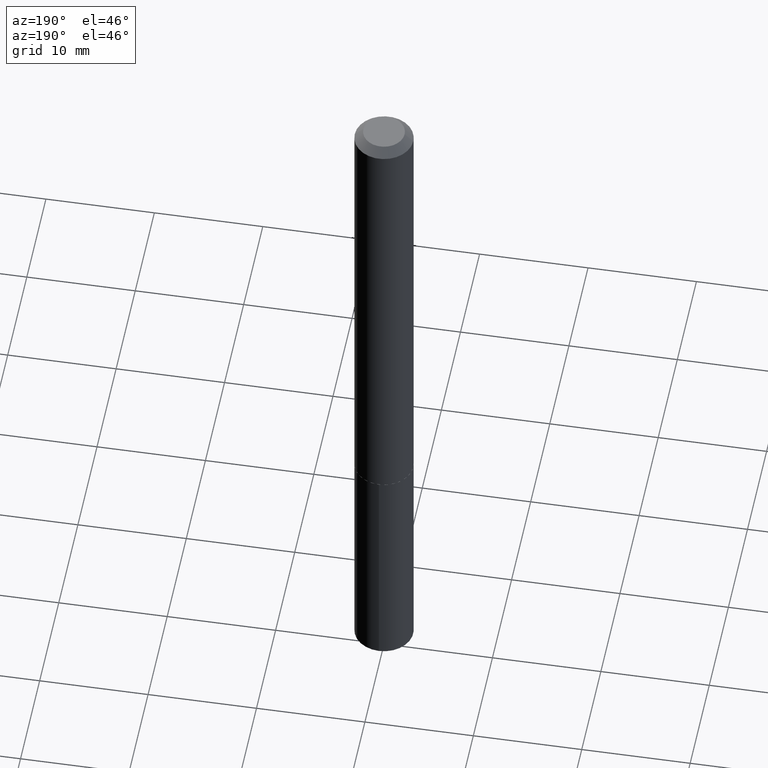
[diagram: clean part render]
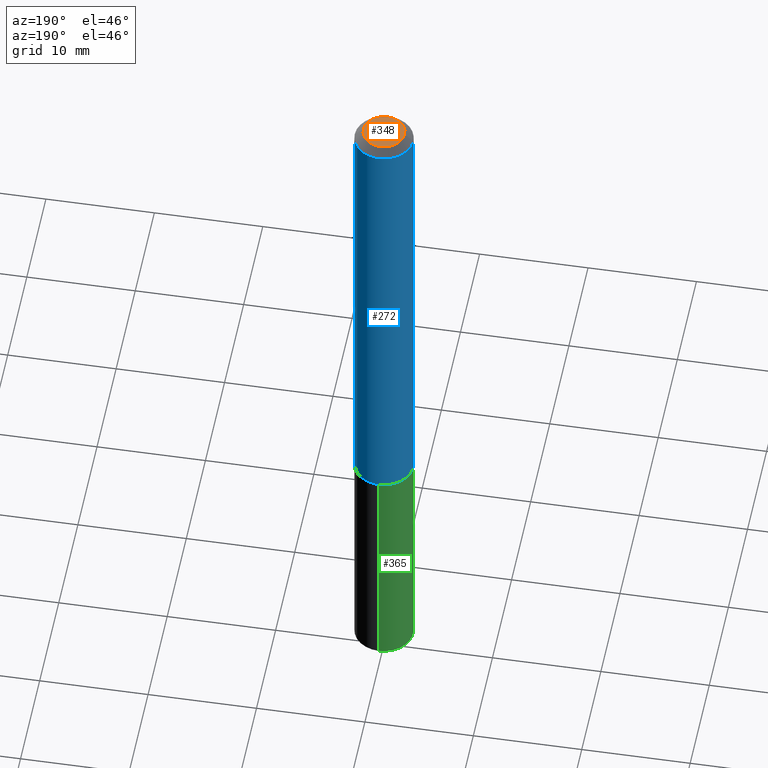
[diagram: same view with three faces highlighted in distinct colors, each labeled with its STEP entity id]
A machine part, auxiliary view with three faces highlighted in distinct colors.
Their STEP definitions:

[orange] entity #348 — the highlighted planar face has unit normal (0, -0, -1).
#7 = ORIENTED_EDGE ( 'NONE', *, *, #293, .T. ) ;
#8 = DIRECTION ( 'NONE',  ( -1.000000000000000000, 6.982962677686265922E-15, -4.876176775795935793E-29 ) ) ;
#38 = PLANE ( 'NONE',  #284 ) ;
#49 = DIRECTION ( 'NONE',  ( -2.445468806185136597E-29, 3.491481338843145583E-15, 1.000000000000000000 ) ) ;
#58 = EDGE_CURVE ( 'NONE', #124, #222, #139, .T. ) ;
#65 = DIRECTION ( 'NONE',  ( 1.000000000000000000, -6.982962677686265922E-15, 4.876182450887181548E-29 ) ) ;
#124 = VERTEX_POINT ( 'NONE', #198 ) ;
#139 = CIRCLE ( 'NONE', #268, 0.07505000000000000560 ) ;
#158 = CARTESIAN_POINT ( 'NONE',  ( -0.07505000000000001947, 5.786257448797778683E-16, 2.388061258298797245E-19 ) ) ;
#191 = CARTESIAN_POINT ( 'NONE',  ( -5.839929314523221596E-48, 8.337871319499147471E-34, 2.388061258337352918E-19 ) ) ;
#198 = CARTESIAN_POINT ( 'NONE',  ( 0.07505000000000001947, -6.766300518673582083E-16, 2.388061258379330487E-19 ) ) ;
#205 = CARTESIAN_POINT ( 'NONE',  ( -5.839929314523221596E-48, 8.337871319499147471E-34, 2.388061258337352918E-19 ) ) ;
#222 = VERTEX_POINT ( 'NONE', #158 ) ;
#261 = FACE_OUTER_BOUND ( 'NONE', #329, .T. ) ;
#268 = AXIS2_PLACEMENT_3D ( 'NONE', #191, #326, #65 ) ;
#282 = CARTESIAN_POINT ( 'NONE',  ( -2.919964657261610798E-48, 4.168935659749573735E-34, 1.194030629168676459E-19 ) ) ;
#284 = AXIS2_PLACEMENT_3D ( 'NONE', #282, #369, #8 ) ;
#293 = EDGE_CURVE ( 'NONE', #222, #124, #330, .T. ) ;
#326 = DIRECTION ( 'NONE',  ( -2.445468806185136597E-29, 3.491481338843145583E-15, 1.000000000000000000 ) ) ;
#329 = EDGE_LOOP ( 'NONE', ( #7, #350 ) ) ;
#330 = CIRCLE ( 'NONE', #345, 0.07505000000000000560 ) ;
#343 = DIRECTION ( 'NONE',  ( 1.000000000000000000, -6.982962677686265922E-15, 4.876182450887181548E-29 ) ) ;
#345 = AXIS2_PLACEMENT_3D ( 'NONE', #205, #49, #343 ) ;
#348 = ADVANCED_FACE ( 'NONE', ( #261 ), #38, .F. ) ;
#350 = ORIENTED_EDGE ( 'NONE', *, *, #58, .T. ) ;
#369 = DIRECTION ( 'NONE',  ( 2.438088387897960049E-29, -3.491481338843145188E-15, -1.000000000000000000 ) ) ;

[blue] entity #272 — the highlighted cylindrical surface (edge-blend (fillet) strip) has radius 2.7 mm, axis along (-0, 0, 1).
#17 = CARTESIAN_POINT ( 'NONE',  ( 0.1063000000000002415, -6.706088207516028077E-15, -1.708099999999999952 ) ) ;
#32 = DIRECTION ( 'NONE',  ( 1.000000000000000000, -6.982962677686266711E-15, 4.876176775795935793E-29 ) ) ;
#39 = FACE_OUTER_BOUND ( 'NONE', #127, .T. ) ;
#69 = CARTESIAN_POINT ( 'NONE',  ( 0.000000000000000000, 0.000000000000000000, 0.000000000000000000 ) ) ;
#80 = CIRCLE ( 'NONE', #178, 0.1063000000000002415 ) ;
#94 = CYLINDRICAL_SURFACE ( 'NONE', #324, 0.1063000000000001166 ) ;
#108 = ORIENTED_EDGE ( 'NONE', *, *, #374, .T. ) ;
#110 = CARTESIAN_POINT ( 'NONE',  ( 7.642090019328599159E-31, -1.091087918388489774E-16, -0.03125000000000019429 ) ) ;
#112 = VECTOR ( 'NONE', #271, 39.37007874015748143 ) ;
#127 = EDGE_LOOP ( 'NONE', ( #108, #353, #315, #196 ) ) ;
#132 = CARTESIAN_POINT ( 'NONE',  ( -0.1063000000000000056, -2.281147105245424221E-15, -0.03125000000000019429 ) ) ;
#160 = DIRECTION ( 'NONE',  ( -2.445468806185136597E-29, 3.491481338843145583E-15, 1.000000000000000000 ) ) ;
#166 = CARTESIAN_POINT ( 'NONE',  ( 0.1063000000000000056, -8.513977244768991407E-16, -0.03125000000000019429 ) ) ;
#176 = DIRECTION ( 'NONE',  ( 1.000000000000000000, -6.982962677686267499E-15, 0.000000000000000000 ) ) ;
#178 = AXIS2_PLACEMENT_3D ( 'NONE', #355, #160, #294 ) ;
#196 = ORIENTED_EDGE ( 'NONE', *, *, #390, .F. ) ;
#202 = DIRECTION ( 'NONE',  ( -2.445468806185136597E-29, 3.491481338843145583E-15, 1.000000000000000000 ) ) ;
#212 = VERTEX_POINT ( 'NONE', #132 ) ;
#244 = CARTESIAN_POINT ( 'NONE',  ( -0.1063000000000001166, 7.553069281129873262E-16, -5.228828000940970663E-30 ) ) ;
#256 = EDGE_CURVE ( 'NONE', #316, #212, #356, .T. ) ;
#264 = VECTOR ( 'NONE', #352, 39.37007874015748143 ) ;
#271 = DIRECTION ( 'NONE',  ( -2.445468806185136877E-29, 3.491481338843145188E-15, 1.000000000000000000 ) ) ;
#272 = ADVANCED_FACE ( 'NONE', ( #39 ), #94, .T. ) ;
#278 = VERTEX_POINT ( 'NONE', #166 ) ;
#280 = VERTEX_POINT ( 'NONE', #17 ) ;
#286 = CARTESIAN_POINT ( 'NONE',  ( -0.1063000000000002415, -5.208492346764989429E-15, -1.708099999999999952 ) ) ;
#294 = DIRECTION ( 'NONE',  ( 1.000000000000000000, -6.982962677686262766E-15, 0.000000000000000000 ) ) ;
#306 = AXIS2_PLACEMENT_3D ( 'NONE', #110, #202, #176 ) ;
#315 = ORIENTED_EDGE ( 'NONE', *, *, #371, .F. ) ;
#316 = VERTEX_POINT ( 'NONE', #286 ) ;
#321 = LINE ( 'NONE', #385, #112 ) ;
#324 = AXIS2_PLACEMENT_3D ( 'NONE', #69, #358, #32 ) ;
#352 = DIRECTION ( 'NONE',  ( -2.445468806185136877E-29, 3.491481338843145188E-15, 1.000000000000000000 ) ) ;
#353 = ORIENTED_EDGE ( 'NONE', *, *, #256, .T. ) ;
#355 = CARTESIAN_POINT ( 'NONE',  ( 4.177105267844832123E-29, -5.963799274877977150E-15, -1.708099999999999952 ) ) ;
#356 = LINE ( 'NONE', #244, #264 ) ;
#358 = DIRECTION ( 'NONE',  ( -2.445468806185136597E-29, 3.491481338843145583E-15, 1.000000000000000000 ) ) ;
#371 = EDGE_CURVE ( 'NONE', #278, #212, #380, .T. ) ;
#374 = EDGE_CURVE ( 'NONE', #280, #316, #80, .T. ) ;
#380 = CIRCLE ( 'NONE', #306, 0.1063000000000000056 ) ;
#385 = CARTESIAN_POINT ( 'NONE',  ( 0.1063000000000001166, -7.422889326380509276E-16, 5.183375912671085656E-30 ) ) ;
#390 = EDGE_CURVE ( 'NONE', #280, #278, #321, .T. ) ;

[green] entity #365 — the highlighted cylindrical surface (edge-blend (fillet) strip) has radius 2.7 mm, axis along (-0, 0, 1).
#6 = EDGE_LOOP ( 'NONE', ( #142, #95, #98, #90 ) ) ;
#18 = AXIS2_PLACEMENT_3D ( 'NONE', #386, #186, #126 ) ;
#19 = DIRECTION ( 'NONE',  ( -2.445366950737463052E-29, 3.491627201641465727E-15, 1.000000000000000000 ) ) ;
#29 = EDGE_CURVE ( 'NONE', #367, #287, #300, .T. ) ;
#45 = CARTESIAN_POINT ( 'NONE',  ( 4.178328002247923804E-29, -5.965545015547398653E-15, -1.708599999999999897 ) ) ;
#64 = CARTESIAN_POINT ( 'NONE',  ( 7.553069281130281498E-16, 0.1062999999999940520, -1.708600000000000119 ) ) ;
#75 = CARTESIAN_POINT ( 'NONE',  ( -7.422889326380084277E-16, -0.1063000000000059592, -1.708599999999999675 ) ) ;
#78 = CYLINDRICAL_SURFACE ( 'NONE', #131, 0.1063000000000000056 ) ;
#90 = ORIENTED_EDGE ( 'NONE', *, *, #230, .F. ) ;
#95 = ORIENTED_EDGE ( 'NONE', *, *, #170, .T. ) ;
#98 = ORIENTED_EDGE ( 'NONE', *, *, #332, .T. ) ;
#104 = CARTESIAN_POINT ( 'NONE',  ( 7.553069281130496462E-16, 0.1062999999999910683, -2.564883738742163910 ) ) ;
#111 = CIRCLE ( 'NONE', #379, 0.1063000000000000056 ) ;
#123 = CARTESIAN_POINT ( 'NONE',  ( -7.422889326379876215E-16, -0.1063000000000090123, -2.564883738742163022 ) ) ;
#126 = DIRECTION ( 'NONE',  ( -6.982962677686265922E-15, -1.000000000000000000, 2.569941668545873170E-15 ) ) ;
#131 = AXIS2_PLACEMENT_3D ( 'NONE', #45, #255, #372 ) ;
#142 = ORIENTED_EDGE ( 'NONE', *, *, #29, .F. ) ;
#148 = CARTESIAN_POINT ( 'NONE',  ( -7.422889326380084277E-16, -0.1063000000000059592, -1.708599999999999675 ) ) ;
#163 = DIRECTION ( 'NONE',  ( -2.445366950737463052E-29, 3.491627201641465727E-15, 1.000000000000000000 ) ) ;
#169 = CARTESIAN_POINT ( 'NONE',  ( 6.272255957421923181E-29, -8.955368610062791421E-15, -2.564883738742163466 ) ) ;
#170 = EDGE_CURVE ( 'NONE', #367, #245, #111, .T. ) ;
#186 = DIRECTION ( 'NONE',  ( -2.445366950737463332E-29, 3.491627201641465727E-15, 1.000000000000000000 ) ) ;
#216 = CIRCLE ( 'NONE', #18, 0.1063000000000000056 ) ;
#224 = DIRECTION ( 'NONE',  ( -2.445366950737463332E-29, 3.491627201641465727E-15, 1.000000000000000000 ) ) ;
#225 = DIRECTION ( 'NONE',  ( -6.982962677686265922E-15, -1.000000000000000000, 5.139883337091746339E-15 ) ) ;
#230 = EDGE_CURVE ( 'NONE', #287, #308, #216, .T. ) ;
#231 = FACE_OUTER_BOUND ( 'NONE', #6, .T. ) ;
#236 = CARTESIAN_POINT ( 'NONE',  ( 7.553069281130493504E-16, 0.1062999999999940520, -1.708600000000000119 ) ) ;
#239 = VECTOR ( 'NONE', #163, 39.37007874015748143 ) ;
#245 = VERTEX_POINT ( 'NONE', #123 ) ;
#255 = DIRECTION ( 'NONE',  ( -2.445366950737463332E-29, 3.491627201641465727E-15, 1.000000000000000000 ) ) ;
#257 = LINE ( 'NONE', #75, #260 ) ;
#260 = VECTOR ( 'NONE', #19, 39.37007874015748143 ) ;
#287 = VERTEX_POINT ( 'NONE', #236 ) ;
#300 = LINE ( 'NONE', #64, #239 ) ;
#308 = VERTEX_POINT ( 'NONE', #148 ) ;
#332 = EDGE_CURVE ( 'NONE', #245, #308, #257, .T. ) ;
#365 = ADVANCED_FACE ( 'NONE', ( #231 ), #78, .T. ) ;
#367 = VERTEX_POINT ( 'NONE', #104 ) ;
#372 = DIRECTION ( 'NONE',  ( -6.982962677686265922E-15, -1.000000000000000000, 2.569941668545873170E-15 ) ) ;
#379 = AXIS2_PLACEMENT_3D ( 'NONE', #169, #224, #225 ) ;
#386 = CARTESIAN_POINT ( 'NONE',  ( 4.178328002247923804E-29, -5.965545015547398653E-15, -1.708599999999999897 ) ) ;